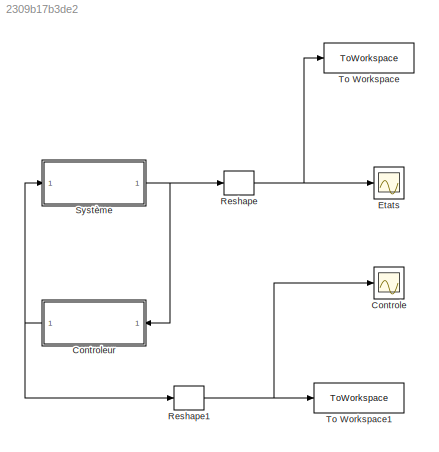
MODEL slx_2309b17b3de2
KIND model
CONFIG AbsTol = auto
CONFIG EnableMultiTasking = off
CONFIG FixedStep = auto
CONFIG MaxStep = auto
CONFIG MinStep = auto
CONFIG RelTol = 1e-3
CONFIG SampleTimeConstraint = Unconstrained
CONFIG SolverName = VariableStepAuto
CONFIG StartTime = 0.0
CONFIG StopTime = 100.0
BLOCK [Scope] Controle
  Floating = off
  NumInputPorts = 1
  Ports = [1]
  ScopeSpecificationString = Simulink.scopes.TimeScopeBlockCfg('CurrentConfiguration', extmgr.ConfigurationSet(extmgr.Configuration('Core','General UI',true),extmgr.Configuration('Core','Source UI',true),extmgr.Configuration('Sources','WiredSimulink',true,'DataLoggingVariableName','ScopeData1'),extmgr.Configuration('Visuals','Time Domain',true,'SerializedDisplays',{struct('MinYLimReal','-2.26751','MaxYLimReal','2.25946','YLab...<+1444ch>
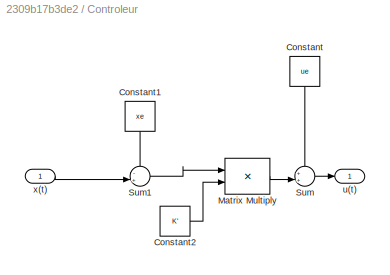
BLOCK [SubSystem] Controleur
  Ports = [1, 1]
  RequestExecContextInheritance = off
BLOCK [Constant] Controleur/Constant
  NameLocation = left
  Value = ue
BLOCK [Constant] Controleur/Constant1
  NameLocation = left
  Value = xe
BLOCK [Constant] Controleur/Constant2
  Value = K'
  VectorParams1D = off
BLOCK [Product] Controleur/Matrix Multiply
  Multiplication = Matrix(*)
  Ports = [2, 1]
BLOCK [Sum] Controleur/Sum
  Inputs = ++|
  Ports = [2, 1]
BLOCK [Sum] Controleur/Sum1
  Inputs = -+|
  Ports = [2, 1]
BLOCK [Outport] Controleur/u(t)
BLOCK [Inport] Controleur/x(t)
BLOCK [Scope] Etats
  Floating = off
  NumInputPorts = 1
  Ports = [1]
  ScopeSpecificationString = Simulink.scopes.TimeScopeBlockCfg('CurrentConfiguration', extmgr.ConfigurationSet(extmgr.Configuration('Core','General UI',true),extmgr.Configuration('Core','Source UI',true),extmgr.Configuration('Sources','WiredSimulink',true),extmgr.Configuration('Visuals','Time Domain',true,'SerializedDisplays',{struct('MinYLimReal','-0.2272','MaxYLimReal','0.22789','YLabelReal','','MinYLimMag','0.00000','MaxYL...<+1390ch>
BLOCK [Reshape] Reshape
  Ports = [1, 1]
BLOCK [Reshape] Reshape1
  Ports = [1, 1]
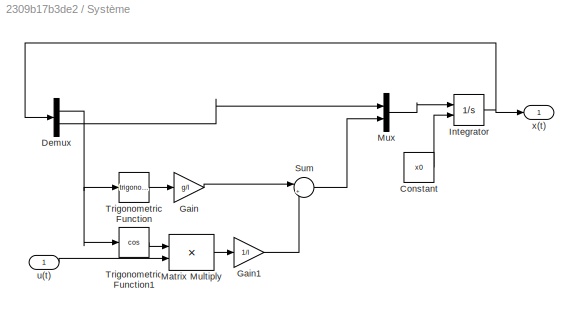
BLOCK [SubSystem] Système
  Ports = [1, 1]
  RequestExecContextInheritance = off
BLOCK [Constant] Système/Constant
  Value = x0
BLOCK [Demux] Système/Demux
  Outputs = 2
  Ports = [1, 2]
BLOCK [Gain] Système/Gain
  Gain = g/l
BLOCK [Gain] Système/Gain1
  Gain = 1/l
BLOCK [Integrator] Système/Integrator
  InitialConditionSource = external
  Ports = [2, 1]
BLOCK [Product] Système/Matrix Multiply
  Ports = [2, 1]
BLOCK [Mux] Système/Mux
  DisplayOption = bar
  Inputs = 2
  Ports = [2, 1]
BLOCK [Sum] Système/Sum
  Inputs = |+-
  Ports = [2, 1]
BLOCK [Trigonometry] Système/Trigonometric Function
  Ports = [1, 1]
BLOCK [Trigonometry] Système/Trigonometric Function1
  Operator = cos
  Ports = [1, 1]
BLOCK [Inport] Système/u(t)
BLOCK [Outport] Système/x(t)
BLOCK [ToWorkspace] To Workspace
  FixptAsFi = on
  MaxDataPoints = inf
  Ports = [1]
  SampleTime = -1
  SaveFormat = Timeseries
  VariableName = X
BLOCK [ToWorkspace] To Workspace1
  FixptAsFi = on
  MaxDataPoints = inf
  Ports = [1]
  SampleTime = -1
  SaveFormat = Timeseries
  VariableName = U
LINE Controleur/Constant1:1 -> Controleur/Sum1:1
LINE Controleur/Constant2:1 -> Controleur/Matrix Multiply:2
LINE Controleur/Constant:1 -> Controleur/Sum:1
LINE Controleur/Matrix Multiply:1 -> Controleur/Sum:2
LINE Controleur/Sum1:1 -> Controleur/Matrix Multiply:1
LINE Controleur/Sum:1 -> Controleur/u(t):1
LINE Controleur/x(t):1 -> Controleur/Sum1:2
NET Controleur:1 -> Reshape1:1, Système:1
NET Reshape1:1 -> Controle:1, To Workspace1:1
NET Reshape:1 -> Etats:1, To Workspace:1
LINE Système/Constant:1 -> Système/Integrator:2
NET Système/Demux:1 -> Système/Trigonometric Function1:1, Système/Trigonometric Function:1
LINE Système/Demux:2 -> Système/Mux:1
LINE Système/Gain1:1 -> Système/Sum:2
LINE Système/Gain:1 -> Système/Sum:1
NET Système/Integrator:1 -> Système/Demux:1, Système/x(t):1
LINE Système/Matrix Multiply:1 -> Système/Gain1:1
LINE Système/Mux:1 -> Système/Integrator:1
LINE Système/Sum:1 -> Système/Mux:2
LINE Système/Trigonometric Function1:1 -> Système/Matrix Multiply:1
LINE Système/Trigonometric Function:1 -> Système/Gain:1
LINE Système/u(t):1 -> Système/Matrix Multiply:2
NET Système:1 -> Controleur:1, Reshape:1
note: NET lines group one-source signal fan-out (src -> all destinations, sorted); 1:1 wires keep LINE
